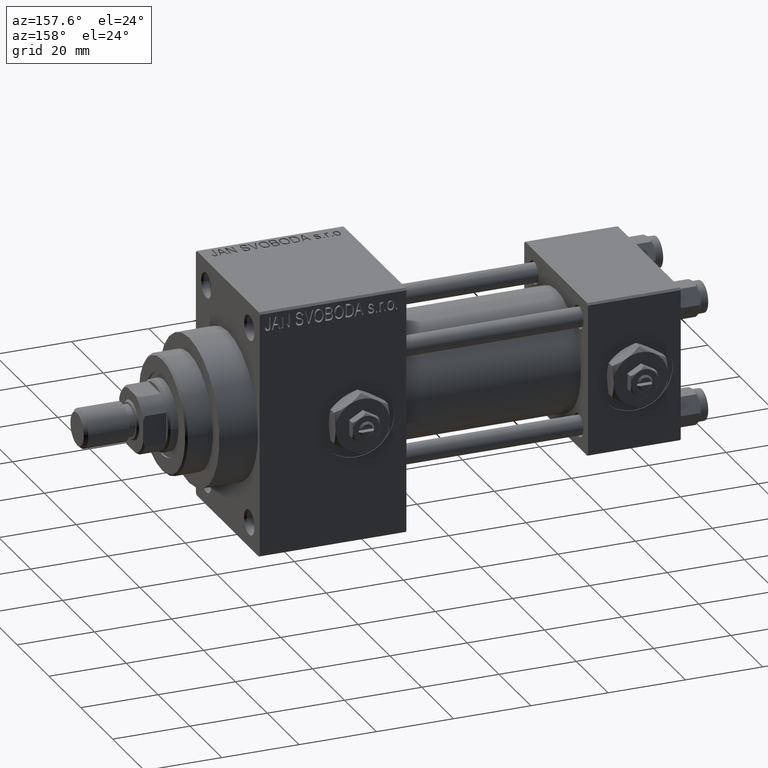
[diagram: clean part render]
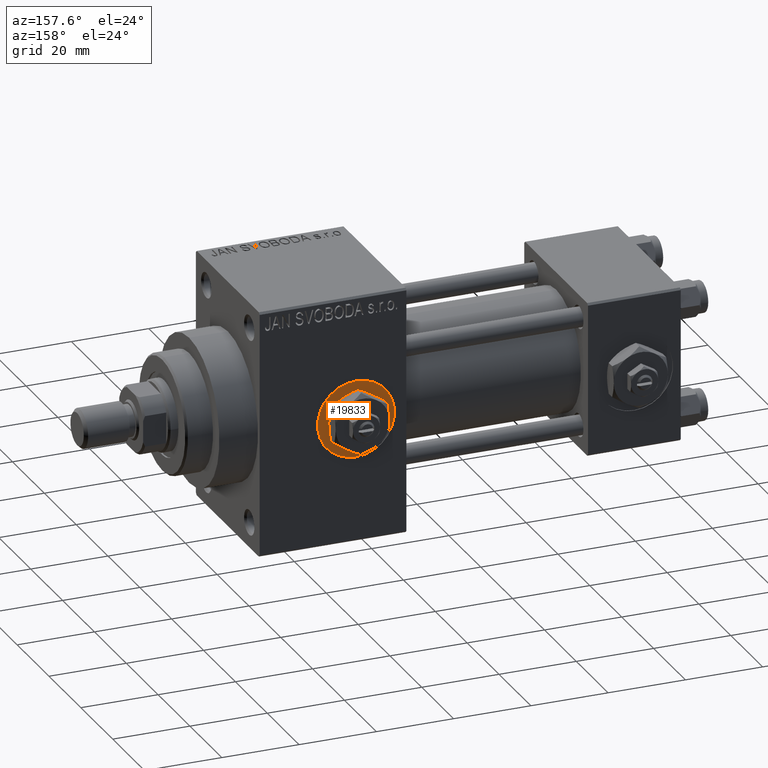
[diagram: same view with one face highlighted and labeled with its STEP entity id]
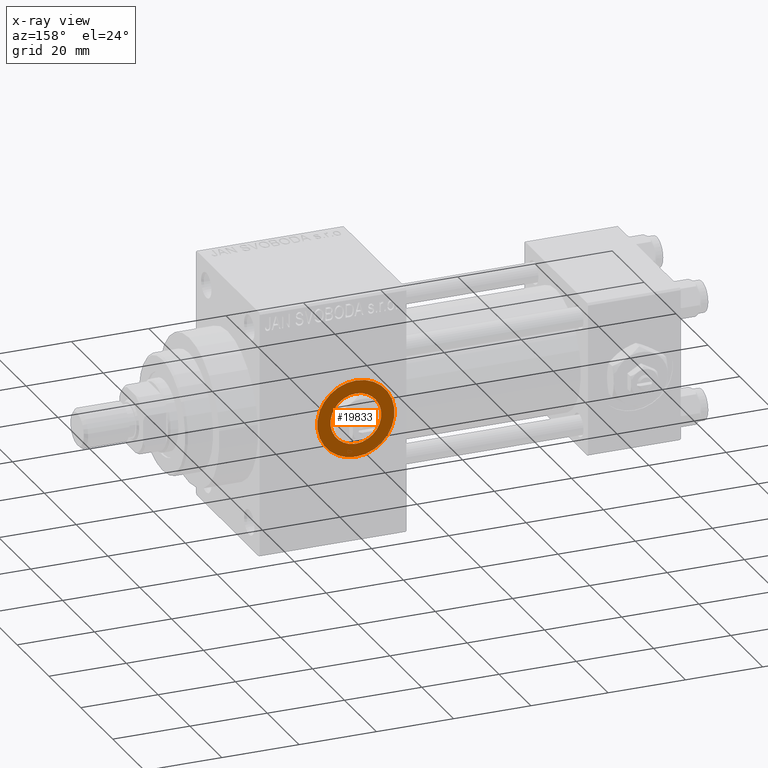
[diagram: x-ray of the same camera — body ghosted, the highlighted face saturated]
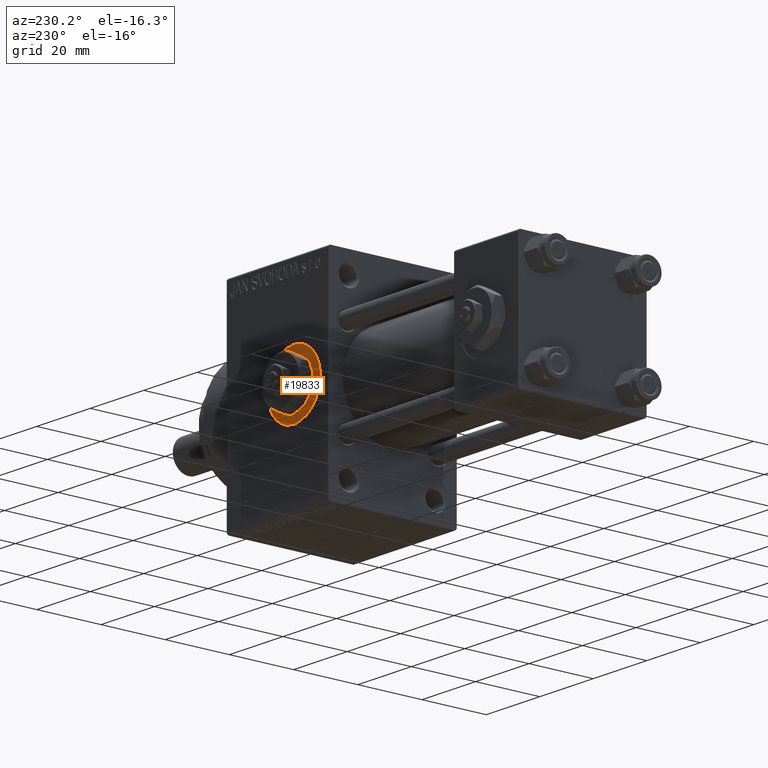
[diagram: same view with one face highlighted and labeled with its STEP entity id]
A machine part, auxiliary view. The second image highlights one B-rep face of the part: STEP entity #19833.
The next image is the same camera in x-ray: the body ghosted, the highlighted face saturated — about 0% of this face is hidden behind the body in this view.
A second angle (auxiliary view) of the same face is appended — the face is thin or edge-on in the first view.
In plain terms, the highlighted planar face has unit normal (0, 1, 0).
Its self-contained STEP definition (entity closure, byte-faithful):
#809 = DIRECTION ( 'NONE',  ( 0.000000000000000000, -0.000000000000000000, 1.000000000000000000 ) ) ;
#2149 = CARTESIAN_POINT ( 'NONE',  ( 84.00000000000000000, 19.80000000000000071, 10.00000000000153300 ) ) ;
#2846 = AXIS2_PLACEMENT_3D ( 'NONE', #18187, #48669, #809 ) ;
#2988 = EDGE_CURVE ( 'NONE', #24910, #26027, #45412, .T. ) ;
#8177 = AXIS2_PLACEMENT_3D ( 'NONE', #8501, #23522, #27518 ) ;
#8501 = CARTESIAN_POINT ( 'NONE',  ( 84.00000000000000000, 19.80000000000000071, 0.000000000000000000 ) ) ;
#9788 = CARTESIAN_POINT ( 'NONE',  ( 84.00000000000000000, 19.80000000000000071, -6.580000000001541061 ) ) ;
#10466 = ORIENTED_EDGE ( 'NONE', *, *, #27532, .F. ) ;
#10997 = DIRECTION ( 'NONE',  ( 0.000000000000000000, 0.000000000000000000, 1.000000000000000000 ) ) ;
#11608 = ORIENTED_EDGE ( 'NONE', *, *, #2988, .F. ) ;
#12623 = CARTESIAN_POINT ( 'NONE',  ( 84.00000000000000000, 19.80000000000000071, 0.000000000000000000 ) ) ;
#14383 = ORIENTED_EDGE ( 'NONE', *, *, #44783, .T. ) ;
#15304 = VERTEX_POINT ( 'NONE', #2149 ) ;
#17549 = AXIS2_PLACEMENT_3D ( 'NONE', #12623, #24126, #23391 ) ;
#18022 = DIRECTION ( 'NONE',  ( 0.000000000000000000, 1.000000000000000000, 0.000000000000000000 ) ) ;
#18187 = CARTESIAN_POINT ( 'NONE',  ( 84.00000000000000000, 19.80000000000000071, 0.000000000000000000 ) ) ;
#19833 = ADVANCED_FACE ( 'NONE', ( #30420, #41177 ), #33440, .T. ) ;
#20529 = DIRECTION ( 'NONE',  ( 0.000000000000000000, 0.000000000000000000, 1.000000000000000000 ) ) ;
#21107 = CIRCLE ( 'NONE', #25103, 10.00000000000153300 ) ;
#23391 = DIRECTION ( 'NONE',  ( 0.000000000000000000, 0.000000000000000000, 1.000000000000000000 ) ) ;
#23522 = DIRECTION ( 'NONE',  ( 0.000000000000000000, 1.000000000000000000, 0.000000000000000000 ) ) ;
#23543 = DIRECTION ( 'NONE',  ( 0.000000000000000000, 1.000000000000000000, 0.000000000000000000 ) ) ;
#24126 = DIRECTION ( 'NONE',  ( 0.000000000000000000, 1.000000000000000000, 0.000000000000000000 ) ) ;
#24910 = VERTEX_POINT ( 'NONE', #29798 ) ;
#25103 = AXIS2_PLACEMENT_3D ( 'NONE', #27047, #23543, #20529 ) ;
#26027 = VERTEX_POINT ( 'NONE', #9788 ) ;
#26909 = VERTEX_POINT ( 'NONE', #34354 ) ;
#27047 = CARTESIAN_POINT ( 'NONE',  ( 84.00000000000000000, 19.80000000000000071, 0.000000000000000000 ) ) ;
#27140 = CIRCLE ( 'NONE', #17549, 6.580000000001541061 ) ;
#27518 = DIRECTION ( 'NONE',  ( 0.000000000000000000, 0.000000000000000000, 1.000000000000000000 ) ) ;
#27532 = EDGE_CURVE ( 'NONE', #26027, #24910, #27140, .T. ) ;
#27832 = AXIS2_PLACEMENT_3D ( 'NONE', #48748, #18022, #10997 ) ;
#29798 = CARTESIAN_POINT ( 'NONE',  ( 84.00000000000000000, 19.80000000000000071, 6.580000000001541061 ) ) ;
#30420 = FACE_BOUND ( 'NONE', #37894, .T. ) ;
#32739 = EDGE_LOOP ( 'NONE', ( #14383, #44808 ) ) ;
#32935 = CIRCLE ( 'NONE', #8177, 10.00000000000153300 ) ;
#33440 = PLANE ( 'NONE',  #2846 ) ;
#34354 = CARTESIAN_POINT ( 'NONE',  ( 84.00000000000000000, 19.80000000000000071, -10.00000000000153300 ) ) ;
#37087 = EDGE_CURVE ( 'NONE', #26909, #15304, #32935, .T. ) ;
#37894 = EDGE_LOOP ( 'NONE', ( #11608, #10466 ) ) ;
#41177 = FACE_OUTER_BOUND ( 'NONE', #32739, .T. ) ;
#44783 = EDGE_CURVE ( 'NONE', #15304, #26909, #21107, .T. ) ;
#44808 = ORIENTED_EDGE ( 'NONE', *, *, #37087, .T. ) ;
#45412 = CIRCLE ( 'NONE', #27832, 6.580000000001541061 ) ;
#48669 = DIRECTION ( 'NONE',  ( 0.000000000000000000, 1.000000000000000000, 0.000000000000000000 ) ) ;
#48748 = CARTESIAN_POINT ( 'NONE',  ( 84.00000000000000000, 19.80000000000000071, 0.000000000000000000 ) ) ;